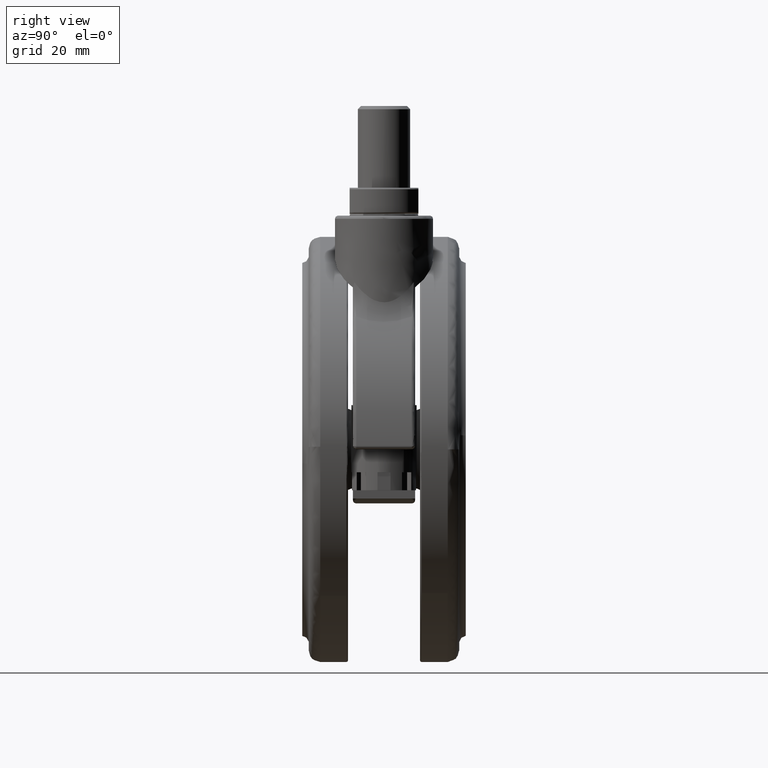
[diagram: clean part render]
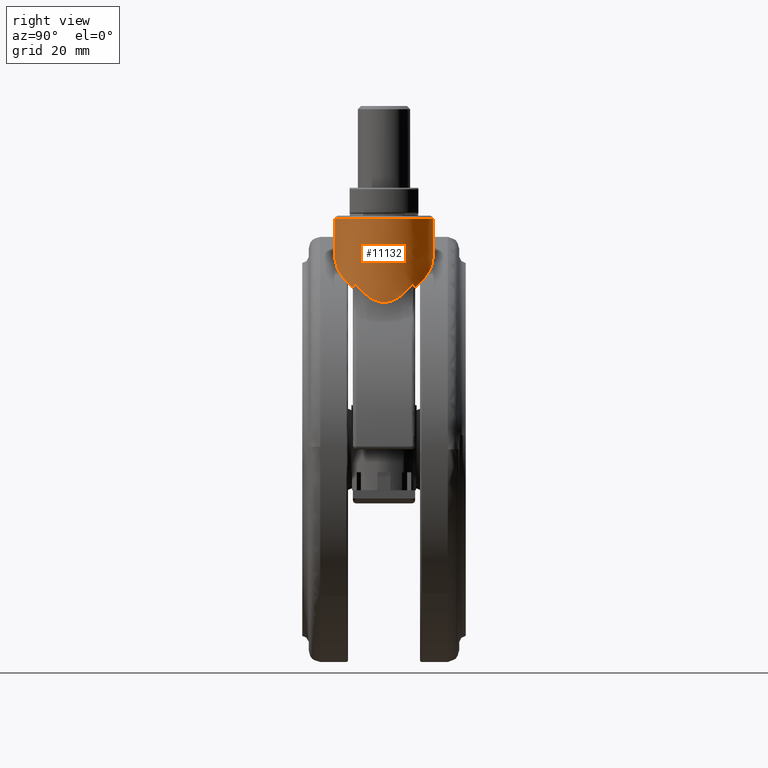
[diagram: same view with one face highlighted and labeled with its STEP entity id]
A machine part, right view. The second image highlights one B-rep face of the part: STEP entity #11132.
In plain terms, the highlighted face is a freeform B-spline surface patch.
Its self-contained STEP definition (entity closure, byte-faithful):
#10147=CARTESIAN_POINT('',(0.465931407500101,-14.992760362946090,-1.000002926618622));
#10148=VERTEX_POINT('',#10147);
#10161=CARTESIAN_POINT('',(14.997631419592659,-0.188475715824201,-1.000005645236913));
#10162=VERTEX_POINT('',#10161);
#10163=CARTESIAN_POINT('',(14.997631419592659,-0.188475715824201,-1.000005645236913));
#10164=CARTESIAN_POINT('',(14.975195300053270,-1.977919793944868,-1.000005643310479));
#10165=CARTESIAN_POINT('',(14.514863742355850,-4.358136685175714,-1.000005559063198));
#10166=CARTESIAN_POINT('',(12.942862243932900,-7.779258066918436,-1.000005265388863));
#10167=CARTESIAN_POINT('',(10.860487905933921,-10.657815516973750,-1.000004873872640));
#10168=CARTESIAN_POINT('',(8.122547547243595,-12.742869663710600,-1.000004358448084));
#10169=CARTESIAN_POINT('',(4.625532338009684,-14.428064732992310,-1.000003701734115));
#10170=CARTESIAN_POINT('',(2.314285528993672,-14.935240580419400,-1.000003270492507));
#10171=CARTESIAN_POINT('',(0.465931407500101,-14.992760362946090,-1.000002926618622));
#10172=B_SPLINE_CURVE_WITH_KNOTS('',3,(#10163,#10164,#10165,#10166,#10167,#10168,#10169,#10170,#10171),.UNSPECIFIED.,.F.,.U.,(4,1,1,1,1,1,4),(-0.000004589701401,5.368760814028317,7.158349550439239,11.274401886306901,15.927333361791000,17.359001693600160,22.906727319126158),.UNSPECIFIED.);
#10173=EDGE_CURVE('',#10162,#10148,#10172,.T.);
#10520=CARTESIAN_POINT('',(-0.465927736400825,14.992727596301270,-1.000002965761247));
#10521=VERTEX_POINT('',#10520);
#10522=CARTESIAN_POINT('',(-0.465927736400825,14.992727596301270,-1.000002965761247));
#10523=CARTESIAN_POINT('',(1.803442012999027,15.064494708164220,-1.000003489854938));
#10524=CARTESIAN_POINT('',(4.467823334548910,14.534028895847930,-1.000004092218208));
#10525=CARTESIAN_POINT('',(8.310727150446574,12.623792631962210,-1.000004968180207));
#10526=CARTESIAN_POINT('',(10.276548165677569,11.091791518474670,-1.000005336305364));
#10527=CARTESIAN_POINT('',(12.634138673027470,8.290667043240976,-1.000005738539767));
#10528=CARTESIAN_POINT('',(14.467314552703041,4.926803765160039,-1.000005900757456));
#10529=CARTESIAN_POINT('',(15.019885122882140,1.576904036409466,-1.000005762133781));
#10530=CARTESIAN_POINT('',(14.997631419592659,-0.188475715824201,-1.000005645236913));
#10531=B_SPLINE_CURVE_WITH_KNOTS('',3,(#10522,#10523,#10524,#10525,#10526,#10527,#10528,#10529,#10530),.UNSPECIFIED.,.F.,.U.,(4,1,1,1,1,1,4),(-0.000003232800292,6.810632479474624,7.945741480576732,12.864533729994641,14.188824535057940,18.918431105043990,24.215578178604229),.UNSPECIFIED.);
#10532=EDGE_CURVE('',#10521,#10162,#10531,.T.);
#10765=CARTESIAN_POINT('',(-0.465928049718672,14.992765058058280,-12.921197774952009));
#10766=VERTEX_POINT('',#10765);
#10897=CARTESIAN_POINT('',(0.465930665193774,-14.992762123430911,-13.480650825490409));
#10898=VERTEX_POINT('',#10897);
#10928=CARTESIAN_POINT('',(0.465930665193774,-14.992762123430911,-13.480650825490409));
#10929=CARTESIAN_POINT('',(0.465931407500101,-14.992760362946090,-1.000002926618622));
#10930=QUASI_UNIFORM_CURVE('',1,(#10928,#10929),.UNSPECIFIED.,.F.,.U.);
#10931=EDGE_CURVE('',#10898,#10148,#10930,.T.);
#10935=CARTESIAN_POINT('',(-0.465928049718672,14.992765058058280,-12.921197774952009));
#10936=CARTESIAN_POINT('',(-0.465927736400825,14.992727596301270,-1.000002965761247));
#10937=QUASI_UNIFORM_CURVE('',1,(#10935,#10936),.UNSPECIFIED.,.F.,.U.);
#10938=EDGE_CURVE('',#10766,#10521,#10937,.T.);
#10943=CARTESIAN_POINT('',(0.465927953461488,-14.992761958431210,-27.137499998386399));
#10944=CARTESIAN_POINT('',(15.458689911892726,-14.526834004969489,-27.137499998386403));
#10945=CARTESIAN_POINT('',(14.992761958431011,0.465927953461743,-27.137499998386399));
#10946=CARTESIAN_POINT('',(14.526834004969293,15.458689911892980,-27.137499998386403));
#10947=CARTESIAN_POINT('',(-0.465927953461942,14.992761958431270,-27.137499998386399));
#10948=CARTESIAN_POINT('',(0.465927953461488,-14.992761958431210,-0.346562499957432));
#10949=CARTESIAN_POINT('',(15.458689911892726,-14.526834004969489,-0.346562499957432));
#10950=CARTESIAN_POINT('',(14.992761958431011,0.465927953461743,-0.346562499957432));
#10951=CARTESIAN_POINT('',(14.526834004969293,15.458689911892980,-0.346562499957432));
#10952=CARTESIAN_POINT('',(-0.465927953461942,14.992761958431270,-0.346562499957432));
#10960=(BOUNDED_SURFACE()B_SPLINE_SURFACE(2,1,((#10943,#10948),(#10944,#10949),(#10945,#10950),(#10946,#10951),(#10947,#10952)),.UNSPECIFIED.,.F.,.F.,.U.)B_SPLINE_SURFACE_WITH_KNOTS((3,2,3),(2,2),(0.0,24.852813742385699,49.705627484771398),(0.0,26.790937498428971),.UNSPECIFIED.)GEOMETRIC_REPRESENTATION_ITEM()RATIONAL_B_SPLINE_SURFACE(((1.0,1.0),(0.707106781186548,0.707106781186548),(1.0,1.0),(0.707106781186548,0.707106781186548),(1.0,1.0)))REPRESENTATION_ITEM('')SURFACE());
#10961=CARTESIAN_POINT('',(11.715082801745419,9.367861813041650,-22.085637549691100));
#10962=VERTEX_POINT('',#10961);
#10963=CARTESIAN_POINT('',(11.715082801745419,9.367861813041650,-22.085637549691100));
#10964=CARTESIAN_POINT('',(11.633281381957080,9.470159454078255,-22.008304564946059));
#10965=CARTESIAN_POINT('',(11.550352356049521,9.571114684889944,-21.930291183667460));
#10966=CARTESIAN_POINT('',(11.382846524456230,9.769732842977303,-21.773519277431951));
#10967=CARTESIAN_POINT('',(11.298210971626631,9.867471602812614,-21.694704861225429));
#10968=CARTESIAN_POINT('',(11.041700093729551,10.156137701957570,-21.457074715309179));
#10969=CARTESIAN_POINT('',(10.867222991584370,10.342520794826720,-21.297074752380940));
#10970=CARTESIAN_POINT('',(10.333634449074101,10.884534868307860,-20.813015017094440));
#10971=CARTESIAN_POINT('',(9.964395657953059,11.223099791635400,-20.484924775200369));
#10972=CARTESIAN_POINT('',(9.199397075225893,11.858256083335229,-19.820719085409081));
#10973=CARTESIAN_POINT('',(8.803631880327114,12.154829514723961,-19.484593268237852));
#10974=CARTESIAN_POINT('',(7.985168029385886,12.707513513494650,-18.806204981768580));
#10975=CARTESIAN_POINT('',(7.562469445309527,12.963618405112920,-18.463937146293770));
#10976=CARTESIAN_POINT('',(7.016493089530952,13.258362934752030,-18.033077152462020));
#10977=CARTESIAN_POINT('',(6.906415595395188,13.316038541325749,-17.946752617612720));
#10978=CARTESIAN_POINT('',(6.684468424250430,13.428824923784010,-17.773813967756428));
#10979=CARTESIAN_POINT('',(6.572516337740059,13.483971497030160,-17.687137607967770));
#10980=CARTESIAN_POINT('',(6.235458499042957,13.644816078184480,-17.427867506774941));
#10981=CARTESIAN_POINT('',(6.008710283385514,13.746157101153150,-17.255685885106899));
#10982=CARTESIAN_POINT('',(5.322304943281671,14.032780686140640,-16.741284611656859));
#10983=CARTESIAN_POINT('',(4.856496628065974,14.200713034797371,-16.401213886776681));
#10984=CARTESIAN_POINT('',(3.908069062271262,14.490438179983411,-15.727437597902140));
#10985=CARTESIAN_POINT('',(3.425450713087812,14.612230644040640,-15.393730611518389));
#10986=CARTESIAN_POINT('',(2.442686490828410,14.808250134728910,-14.733161476693560));
#10987=CARTESIAN_POINT('',(1.942543252743660,14.882485587045799,-14.406298790372610));
#10988=CARTESIAN_POINT('',(1.305733061871036,14.943605669829120,-14.002220192406140));
#10989=CARTESIAN_POINT('',(1.177788439833924,14.954241386399460,-13.921629167540891));
#10990=CARTESIAN_POINT('',(0.920712660522529,14.972267946236281,-13.760900888938140));
#10991=CARTESIAN_POINT('',(0.791788692627193,14.979640182540161,-13.680894624185990));
#10992=CARTESIAN_POINT('',(0.405245941728367,14.996740479511971,-13.442801088301570));
#10993=CARTESIAN_POINT('',(0.147307304743326,15.001495344713151,-13.286295137090191));
#10994=CARTESIAN_POINT('',(-0.229166126780891,14.998712934978901,-13.061260324657811));
#10995=CARTESIAN_POINT('',(-0.347524842294829,14.996441765696510,-12.991000287105161));
#10996=CARTESIAN_POINT('',(-0.465928049718672,14.992765058058280,-12.921197774952009));
#10997=B_SPLINE_CURVE_WITH_KNOTS('',3,(#10963,#10964,#10965,#10966,#10967,#10968,#10969,#10970,#10971,#10972,#10973,#10974,#10975,#10976,#10977,#10978,#10979,#10980,#10981,#10982,#10983,#10984,#10985,#10986,#10987,#10988,#10989,#10990,#10991,#10992,#10993,#10994,#10995,#10996),.UNSPECIFIED.,.F.,.U.,(4,2,2,2,2,2,2,2,2,2,2,2,2,2,2,2,4),(0.0,0.015625000000000,0.031250000000000,0.062500000000000,0.125000000000000,0.187500000000000,0.250000000000000,0.265625000000001,0.281250000000001,0.312500000000001,0.375000000000001,0.437500000000001,0.500000000000001,0.515625000000001,0.531250000000000,0.562500000000000,0.576821386095178),.UNSPECIFIED.);
#10998=EDGE_CURVE('',#10962,#10766,#10997,.T.);
#10999=ORIENTED_EDGE('',*,*,#10998,.T.);
#11000=ORIENTED_EDGE('',*,*,#10938,.T.);
#11001=ORIENTED_EDGE('',*,*,#10532,.T.);
#11002=ORIENTED_EDGE('',*,*,#10173,.T.);
#11003=ORIENTED_EDGE('',*,*,#10931,.F.);
#11004=CARTESIAN_POINT('',(11.715082801745520,-9.367861813041468,-22.085637549691199));
#11005=VERTEX_POINT('',#11004);
#11006=CARTESIAN_POINT('',(0.465930665193774,-14.992762123430911,-13.480650825490409));
#11007=CARTESIAN_POINT('',(0.536871246009107,-14.990557276091520,-13.524015173648470));
#11008=CARTESIAN_POINT('',(0.607761719556441,-14.987849937806519,-13.567527619193070));
#11009=CARTESIAN_POINT('',(0.806963978720666,-14.978828718141390,-13.690301782791151));
#11010=CARTESIAN_POINT('',(0.935160754489887,-14.971370607690060,-13.769902312113789));
#11011=CARTESIAN_POINT('',(1.191220621550822,-14.953175421272899,-13.930081401686561));
#11012=CARTESIAN_POINT('',(1.319201390942147,-14.942426517179070,-14.010734825528800));
#11013=CARTESIAN_POINT('',(1.956840667299929,-14.880638897199979,-14.415551551857940));
#11014=CARTESIAN_POINT('',(2.457511178229328,-14.805816563051630,-14.742944175321909));
#11015=CARTESIAN_POINT('',(3.441095275439466,-14.608573655111050,-15.404449322037911));
#11016=CARTESIAN_POINT('',(3.924006097769447,-14.486144349072211,-15.738562371556110));
#11017=CARTESIAN_POINT('',(4.872809608377009,-14.195137414038630,-16.413020462655449));
#11018=CARTESIAN_POINT('',(5.338701328512213,-14.026559903370670,-16.753366936279441));
#11019=CARTESIAN_POINT('',(6.025087981864472,-13.738989094494340,-17.268076510919212));
#11020=CARTESIAN_POINT('',(6.251939907695779,-13.637271385267260,-17.440446496657231));
#11021=CARTESIAN_POINT('',(6.700954865976058,-13.422336893521850,-17.786051375101280));
#11022=CARTESIAN_POINT('',(6.921877670188238,-13.309722560014810,-17.958328318827110));
#11023=CARTESIAN_POINT('',(7.574230925400116,-12.956679115564819,-18.473406218139900));
#11024=CARTESIAN_POINT('',(7.995271270957286,-12.701099417533131,-18.814470691183129));
#11025=CARTESIAN_POINT('',(8.810796525772703,-12.149574355980681,-19.490649487672322));
#11026=CARTESIAN_POINT('',(9.205281599338882,-11.853635084574011,-19.825769223725860));
#11027=CARTESIAN_POINT('',(9.968055212757415,-11.219792964350180,-20.488166676052110));
#11028=CARTESIAN_POINT('',(10.336349296163450,-10.881908483761890,-20.815454782238799));
#11029=CARTESIAN_POINT('',(10.868751283563361,-10.340901920048919,-21.298474592091608));
#11030=CARTESIAN_POINT('',(11.042871388182220,-10.154852429815660,-21.458155180492220));
#11031=CARTESIAN_POINT('',(11.298902734884630,-9.866676410845253,-21.695348919565120));
#11032=CARTESIAN_POINT('',(11.383387776732890,-9.769099280737263,-21.774024979104968));
#11033=CARTESIAN_POINT('',(11.550611007717221,-9.570799608008089,-21.930534724389410));
#11034=CARTESIAN_POINT('',(11.633409589595040,-9.469999099840985,-22.008425867673470));
#11035=CARTESIAN_POINT('',(11.715082801745520,-9.367861813041468,-22.085637549691199));
#11036=B_SPLINE_CURVE_WITH_KNOTS('',3,(#11006,#11007,#11008,#11009,#11010,#11011,#11012,#11013,#11014,#11015,#11016,#11017,#11018,#11019,#11020,#11021,#11022,#11023,#11024,#11025,#11026,#11027,#11028,#11029,#11030,#11031,#11032,#11033,#11034,#11035),.UNSPECIFIED.,.F.,.U.,(4,2,2,2,2,2,2,2,2,2,2,2,2,2,4),(0.460126926704013,0.468749999999998,0.484374999999998,0.499999999999998,0.562499999999998,0.624999999999998,0.687499999999999,0.718749999999999,0.749999999999999,0.812499999999999,0.874999999999999,0.937500000000000,0.968750000000000,0.984375000000000,1.0),.UNSPECIFIED.);
#11037=EDGE_CURVE('',#10898,#11005,#11036,.T.);
#11038=ORIENTED_EDGE('',*,*,#11037,.T.);
#11039=CARTESIAN_POINT('',(11.918890425693640,-9.107142857137070,-20.364378225340399));
#11040=VERTEX_POINT('',#11039);
#11041=CARTESIAN_POINT('',(11.715082801745520,-9.367861813041468,-22.085637549691199));
#11042=CARTESIAN_POINT('',(11.740862505359051,-9.335622720656813,-21.796098239949579));
#11043=CARTESIAN_POINT('',(11.770951831051599,-9.297727877624141,-21.507920508776959));
#11044=CARTESIAN_POINT('',(11.822065973760470,-9.232525049295669,-21.077620584695040));
#11045=CARTESIAN_POINT('',(11.840101103406219,-9.209395628126842,-20.934515360545209));
#11046=CARTESIAN_POINT('',(11.878084489907531,-9.160353204154404,-20.648950507938469));
#11047=CARTESIAN_POINT('',(11.898114158851349,-9.134333607496805,-20.506380954748970));
#11048=CARTESIAN_POINT('',(11.918890425693640,-9.107142857137070,-20.364378225340399));
#11049=B_SPLINE_CURVE_WITH_KNOTS('',3,(#11041,#11042,#11043,#11044,#11045,#11046,#11047,#11048),.UNSPECIFIED.,.F.,.U.,(4,2,2,4),(0.0,0.499999999999997,0.749999999999999,1.0),.UNSPECIFIED.);
#11050=EDGE_CURVE('',#11005,#11040,#11049,.T.);
#11051=ORIENTED_EDGE('',*,*,#11050,.T.);
#11052=CARTESIAN_POINT('',(11.918890425694860,9.107142857135509,-20.364378225342548));
#11053=VERTEX_POINT('',#11052);
#11054=CARTESIAN_POINT('',(11.918890425693640,-9.107142857137070,-20.364378225340399));
#11055=CARTESIAN_POINT('',(12.020525422436210,-8.974128979064314,-20.546123205382059));
#11056=CARTESIAN_POINT('',(12.120733209936979,-8.838372340948638,-20.727126991298110));
#11057=CARTESIAN_POINT('',(12.318263302362640,-8.560922169800445,-21.087403278351211));
#11058=CARTESIAN_POINT('',(12.415457541334129,-8.419395529316271,-21.266446477059340));
#11059=CARTESIAN_POINT('',(12.701202381710790,-7.987407978675070,-21.797819627682120));
#11060=CARTESIAN_POINT('',(12.884355646616219,-7.688998882005624,-22.145202635399670));
#11061=CARTESIAN_POINT('',(13.235392020312210,-7.067653238850278,-22.822773433160599));
#11062=CARTESIAN_POINT('',(13.403285479467080,-6.744747986069531,-23.152987819846889));
#11063=CARTESIAN_POINT('',(13.722555749565471,-6.068867335817260,-23.791211349210212));
#11064=CARTESIAN_POINT('',(13.873954856875841,-5.715956414088499,-24.099274794783209));
#11065=CARTESIAN_POINT('',(14.086884141734579,-5.157459689802620,-24.538924789821159));
#11066=CARTESIAN_POINT('',(14.155488415055300,-4.966408666292883,-24.681708371374530));
#11067=CARTESIAN_POINT('',(14.254471424066010,-4.671275120117548,-24.889168675705712));
#11068=CARTESIAN_POINT('',(14.286812100822020,-4.571446960639433,-24.957204105929200));
#11069=CARTESIAN_POINT('',(14.349692440340201,-4.370063407523703,-25.089937080130660));
#11070=CARTESIAN_POINT('',(14.380286201761830,-4.268350797124597,-25.154747724696389));
#11071=CARTESIAN_POINT('',(14.528862706999730,-3.754376751418207,-25.470510208039471));
#11072=CARTESIAN_POINT('',(14.633801160582790,-3.326068523397236,-25.696883743288812));
#11073=CARTESIAN_POINT('',(14.743833324053170,-2.762708485688751,-25.936256839155099));
#11074=CARTESIAN_POINT('',(14.764773687525210,-2.648625113517964,-25.981931848461262));
#11075=CARTESIAN_POINT('',(14.804386861963160,-2.417413220185464,-26.068520809168589));
#11076=CARTESIAN_POINT('',(14.823047995144950,-2.300302662323580,-26.109409586031479));
#11077=CARTESIAN_POINT('',(14.874963989779101,-1.947311767912626,-26.223373865414739));
#11078=CARTESIAN_POINT('',(14.904337286100850,-1.708765907973163,-26.288149170144479));
#11079=CARTESIAN_POINT('',(14.940009357154871,-1.345699864251592,-26.366983094793419));
#11080=CARTESIAN_POINT('',(14.950500706645119,-1.223802670568289,-26.390204162619760));
#11081=CARTESIAN_POINT('',(14.968578048333660,-0.978179721130069,-26.430250992493519));
#11082=CARTESIAN_POINT('',(14.976172014930929,-0.854284065075800,-26.447094399720200));
#11083=CARTESIAN_POINT('',(14.994361520147260,-0.480874767189381,-26.487460188283769));
#11084=CARTESIAN_POINT('',(15.000303710211190,-0.231299284057544,-26.500674910946898));
#11085=CARTESIAN_POINT('',(14.999830242908420,0.144032542399393,-26.499622762354111));
#11086=CARTESIAN_POINT('',(14.998094875940501,0.269644784964851,-26.495765780832151));
#11087=CARTESIAN_POINT('',(14.991536698378271,0.519023736402504,-26.481197880408939));
#11088=CARTESIAN_POINT('',(14.986724467742770,0.642851921065266,-26.470510535667309));
#11089=CARTESIAN_POINT('',(14.967859673189979,1.011855850179416,-26.428651961545970));
#11090=CARTESIAN_POINT('',(14.949384588455921,1.254553046429569,-26.387691542511281));
#11091=CARTESIAN_POINT('',(14.901403466154269,1.733833226915046,-26.281677256644400));
#11092=CARTESIAN_POINT('',(14.871896394415501,1.970415890309447,-26.216622332196419));
#11093=CARTESIAN_POINT('',(14.819810527411390,2.321029129152584,-26.102312898987812));
#11094=CARTESIAN_POINT('',(14.801143157541111,2.437189622816481,-26.061420271211020));
#11095=CARTESIAN_POINT('',(14.761259063483459,2.668138468730145,-25.974261505221062));
#11096=CARTESIAN_POINT('',(14.740116110514480,2.782489393860665,-25.928156936776379));
#11097=CARTESIAN_POINT('',(14.695642381861351,3.008548680483022,-25.831433999236580));
#11098=CARTESIAN_POINT('',(14.672296149892400,3.120346557709014,-25.780781864791980));
#11099=CARTESIAN_POINT('',(14.623486588142290,3.341627890232010,-25.675188598552069));
#11100=CARTESIAN_POINT('',(14.598001227820200,3.451184345047675,-25.620200633798401));
#11101=CARTESIAN_POINT('',(14.519016769501020,3.774573481962406,-25.450303450666009));
#11102=CARTESIAN_POINT('',(14.462851537782720,3.983843842308413,-25.330163057703089));
#11103=CARTESIAN_POINT('',(14.285010515591599,4.595521735867189,-24.952386264808499));
#11104=CARTESIAN_POINT('',(14.154056257390961,4.981936501191097,-24.677552310218459));
#11105=CARTESIAN_POINT('',(13.871300416380080,5.722239474001623,-24.093862991731601));
#11106=CARTESIAN_POINT('',(13.719462473242650,6.076052104332689,-23.784922737854561));
#11107=CARTESIAN_POINT('',(13.477610615760851,6.587072720279195,-23.301619187304439));
#11108=CARTESIAN_POINT('',(13.394535984128810,6.754264217884475,-23.136991858202229));
#11109=CARTESIAN_POINT('',(13.225279604521180,7.079947650749426,-22.804593477402449));
#11110=CARTESIAN_POINT('',(13.138933512599680,7.238804361678107,-22.636490199010090));
#11111=CARTESIAN_POINT('',(12.874962981477690,7.704724392621441,-22.127286600986359));
#11112=CARTESIAN_POINT('',(12.692421577943479,8.001199293622271,-21.781328451423850));
#11113=CARTESIAN_POINT('',(12.314915341244919,8.570858520969624,-21.079645980808230));
#11114=CARTESIAN_POINT('',(12.119944316917019,8.844015404681100,-20.723905323474028));
#11115=CARTESIAN_POINT('',(11.918890425694810,9.107142857135576,-20.364378225342630));
#11116=B_SPLINE_CURVE_WITH_KNOTS('',3,(#11054,#11055,#11056,#11057,#11058,#11059,#11060,#11061,#11062,#11063,#11064,#11065,#11066,#11067,#11068,#11069,#11070,#11071,#11072,#11073,#11074,#11075,#11076,#11077,#11078,#11079,#11080,#11081,#11082,#11083,#11084,#11085,#11086,#11087,#11088,#11089,#11090,#11091,#11092,#11093,#11094,#11095,#11096,#11097,#11098,#11099,#11100,#11101,#11102,#11103,#11104,#11105,#11106,#11107,#11108,#11109,#11110,#11111,#11112,#11113,#11114,#11115),.UNSPECIFIED.,.F.,.U.,(4,2,2,2,2,2,2,2,2,2,2,2,2,2,2,2,2,2,2,2,2,2,2,2,2,2,2,2,2,2,4),(0.0,0.031250000000000,0.062499999999999,0.124999999999998,0.187499999999997,0.249999999999996,0.281249999999996,0.296874999999996,0.312499999999995,0.374999999999995,0.390624999999995,0.406249999999995,0.437499999999995,0.453124999999995,0.468749999999995,0.499999999999995,0.515624999999995,0.531249999999995,0.562499999999995,0.593749999999995,0.609374999999995,0.624999999999995,0.640624999999995,0.656249999999995,0.687499999999995,0.749999999999996,0.812499999999997,0.843749999999998,0.874999999999998,0.937499999999999,1.0),.UNSPECIFIED.);
#11117=EDGE_CURVE('',#11040,#11053,#11116,.T.);
#11118=ORIENTED_EDGE('',*,*,#11117,.T.);
#11119=CARTESIAN_POINT('',(11.918890425694860,9.107142857135509,-20.364378225342548));
#11120=CARTESIAN_POINT('',(11.898114157824690,9.134333608843985,-20.506380954030941));
#11121=CARTESIAN_POINT('',(11.878084489913990,9.160353204146098,-20.648950507646550));
#11122=CARTESIAN_POINT('',(11.840101103411319,9.209395628120401,-20.934515360313512));
#11123=CARTESIAN_POINT('',(11.822065973764200,9.232525049291004,-21.077620584492891));
#11124=CARTESIAN_POINT('',(11.770951831052940,9.297727877622567,-21.507920508662970));
#11125=CARTESIAN_POINT('',(11.740862505359440,9.335622720656424,-21.796098239893180));
#11126=CARTESIAN_POINT('',(11.715082801745419,9.367861813041650,-22.085637549691100));
#11127=B_SPLINE_CURVE_WITH_KNOTS('',3,(#11119,#11120,#11121,#11122,#11123,#11124,#11125,#11126),.UNSPECIFIED.,.F.,.U.,(4,2,2,4),(0.0,0.250000000000000,0.500000000000000,1.0),.UNSPECIFIED.);
#11128=EDGE_CURVE('',#11053,#10962,#11127,.T.);
#11129=ORIENTED_EDGE('',*,*,#11128,.T.);
#11130=EDGE_LOOP('',(#10999,#11000,#11001,#11002,#11003,#11038,#11051,#11118,#11129));
#11131=FACE_OUTER_BOUND('',#11130,.T.);
#11132=ADVANCED_FACE('',(#11131),#10960,.T.);